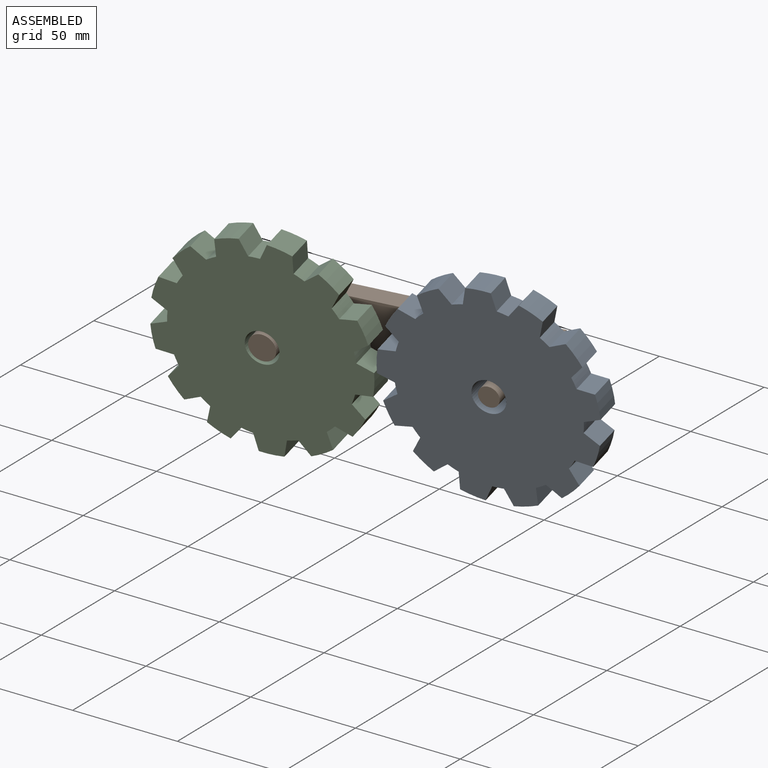
[diagram: assembled view]
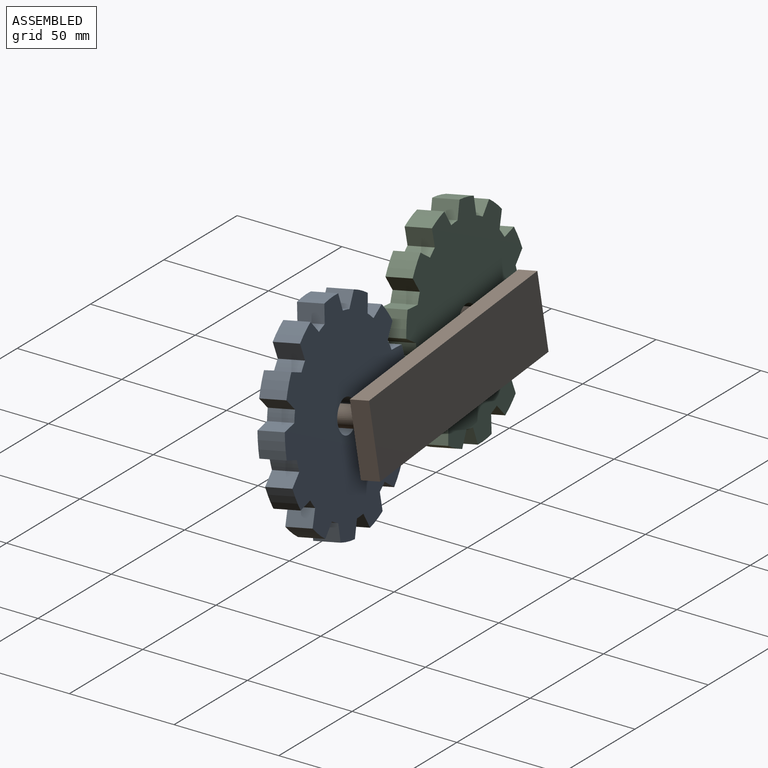
[diagram: assembled view, second angle]
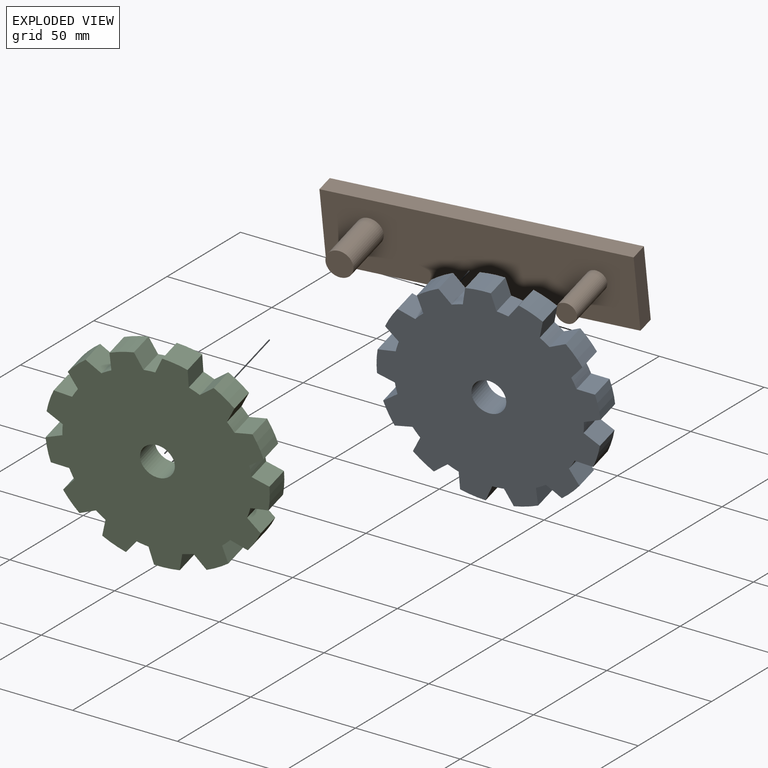
[diagram: exploded view]
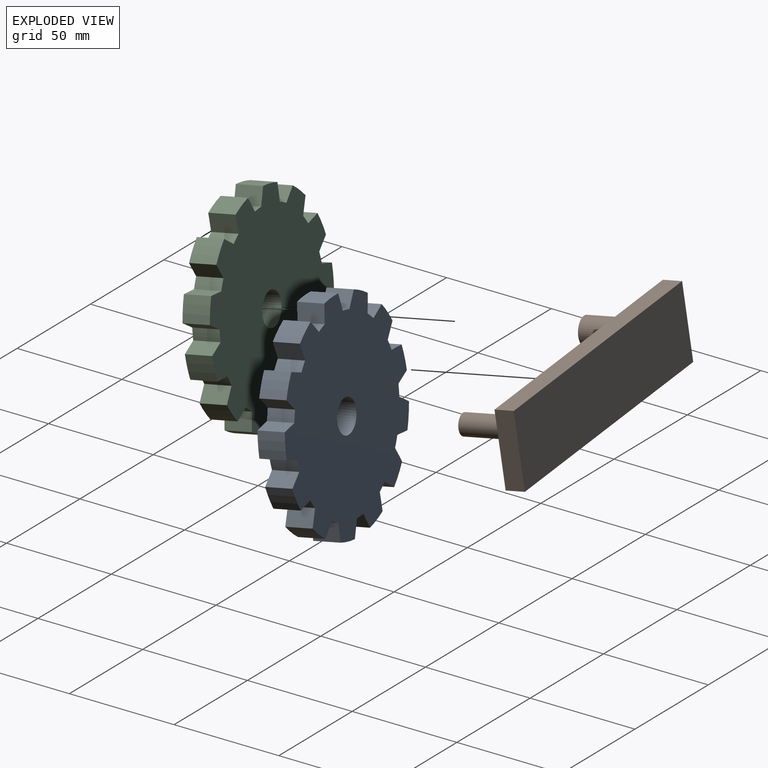
[diagram: exploded view, second angle]
ASSEMBLY  parts=3 mates=2
PART A: 55 faces, bbox 99.3x12.3x98.9 mm
  f0: plane 12.26x8.15mm, normal (-1,0,0.02), area 100mm2, adj f1,f52,f53,f54
  f1: cylinder r=49.64mm len=12.26mm, axis (0,1,0), area 140.1mm2, adj f0,f2,f53,f54
  f2: plane 12.26x7.3mm, normal (0.89,0,-0.45), area 100mm2, adj f1,f3,f53,f54
  f3: cylinder r=42.02mm len=12.26mm, axis (0,1,0), area 64.4mm2, adj f2,f4,f53,f54
  f4: plane 12.26x7.3mm, normal (-0.89,0,-0.45), area 100mm2, adj f3,f5,f53,f54
  f5: cylinder r=49.64mm len=12.26mm, axis (0,1,0), area 140.1mm2, adj f4,f6,f53,f54
  f6: plane 12.26x8.15mm, normal (1,0,0.02), area 100mm2, adj f5,f7,f53,f54
  f7: cylinder r=42.02mm len=12.26mm, axis (0,1,0), area 64.4mm2, adj f6,f8,f53,f54
  f8: plane 12.26x6.62mm, normal (-0.58,0,-0.81), area 100mm2, adj f7,f9,f53,f54
  f9: cylinder r=49.64mm len=12.26mm, axis (0,1,0), area 140.1mm2, adj f8,f10,f53,f54
  f10: plane 12.26x7.14mm, normal (0.88,0,0.48), area 100mm2, adj f9,f11,f53,f54
  f11: cylinder r=42.02mm len=12.26mm, axis (0,1,0), area 64.4mm2, adj f10,f12,f53,f54
  f12: plane 12.26x8.08mm, normal (-0.14,0,-0.99), area 100mm2, adj f11,f13,f53,f54
  f13: cylinder r=49.64mm len=12.26mm, axis (0,1,0), area 140.1mm2, adj f12,f14,f53,f54
  f14: plane 12.26x6.81mm, normal (0.55,0,0.83), area 100mm2, adj f13,f15,f53,f54
  f15: cylinder r=42.02mm len=12.26mm, axis (0,1,0), area 64.4mm2, adj f14,f16,f53,f54
  f16: plane 12.26x7.68mm, normal (0.34,0,-0.94), area 100mm2, adj f15,f17,f53,f54
  f17: cylinder r=49.64mm len=12.26mm, axis (0,1,0), area 140.1mm2, adj f16,f18,f53,f54
  f18: plane 12.26x8.12mm, normal (0.1,0,0.99), area 100mm2, adj f17,f19,f53,f54
  f19: cylinder r=42.02mm len=12.26mm, axis (0,1,0), area 64.4mm2, adj f18,f20,f53,f54
  f20: plane 12.26x5.99mm, normal (0.73,0,-0.68), area 100mm2, adj f19,f21,f53,f54
  f21: cylinder r=49.64mm len=12.26mm, axis (0,1,0), area 140.1mm2, adj f20,f22,f53,f54
  f22: plane 12.26x7.57mm, normal (-0.37,0,0.93), area 100mm2, adj f21,f23,f53,f54
  f23: cylinder r=42.02mm len=12.26mm, axis (0,1,0), area 64.4mm2, adj f22,f24,f53,f54
  f24: plane 12.26x7.88mm, normal (0.97,0,-0.26), area 100mm2, adj f23,f25,f53,f54
  f25: cylinder r=49.64mm len=12.26mm, axis (0,1,0), area 140.1mm2, adj f24,f26,f53,f54
  f26: plane 12.26x6.22mm, normal (-0.76,0,0.65), area 100mm2, adj f25,f27,f53,f54
  f27: cylinder r=42.02mm len=12.26mm, axis (0,1,0), area 64.4mm2, adj f26,f28,f53,f54
  f28: plane 12.26x7.96mm, normal (0.98,0,0.22), area 100mm2, adj f27,f29,f53,f54
  f29: cylinder r=49.64mm len=12.26mm, axis (0,1,0), area 140.1mm2, adj f28,f30,f53,f54
  f30: plane 12.26x7.96mm, normal (-0.98,0,0.22), area 100mm2, adj f29,f31,f53,f54
  f31: cylinder r=42.02mm len=12.26mm, axis (0,1,0), area 64.4mm2, adj f30,f32,f53,f54
  f32: plane 12.26x6.22mm, normal (0.76,0,0.65), area 100mm2, adj f31,f33,f53,f54
  f33: cylinder r=49.64mm len=12.26mm, axis (0,1,0), area 140.1mm2, adj f32,f34,f53,f54
  f34: plane 12.26x7.88mm, normal (-0.97,0,-0.26), area 100mm2, adj f33,f35,f53,f54
  f35: cylinder r=42.02mm len=12.26mm, axis (0,1,0), area 64.4mm2, adj f34,f36,f53,f54
  f36: plane 12.26x7.57mm, normal (0.37,0,0.93), area 100mm2, adj f35,f37,f53,f54
  f37: cylinder r=49.64mm len=12.26mm, axis (0,1,0), area 140.1mm2, adj f36,f38,f53,f54
  f38: plane 12.26x5.99mm, normal (-0.73,0,-0.68), area 100mm2, adj f37,f39,f53,f54
  f39: cylinder r=42.02mm len=12.26mm, axis (0,1,0), area 64.4mm2, adj f38,f40,f53,f54
  f40: plane 12.26x8.12mm, normal (-0.1,0,0.99), area 100mm2, adj f39,f41,f53,f54
  f41: cylinder r=49.64mm len=12.26mm, axis (0,1,0), area 140.1mm2, adj f40,f42,f53,f54
  f42: plane 12.26x7.68mm, normal (-0.34,0,-0.94), area 100mm2, adj f41,f43,f53,f54
  f43: cylinder r=42.02mm len=12.26mm, axis (0,1,0), area 64.4mm2, adj f42,f44,f53,f54
  f44: plane 12.26x6.81mm, normal (-0.55,0,0.83), area 100mm2, adj f43,f45,f53,f54
  f45: cylinder r=49.64mm len=12.26mm, axis (0,1,0), area 140.1mm2, adj f44,f46,f53,f54
  f46: plane 12.26x8.08mm, normal (0.14,0,-0.99), area 100mm2, adj f45,f47,f53,f54
  f47: cylinder r=42.02mm len=12.26mm, axis (0,1,0), area 64.4mm2, adj f46,f48,f53,f54
  f48: plane 12.26x7.14mm, normal (-0.88,0,0.48), area 100mm2, adj f47,f49,f53,f54
  f49: cylinder r=49.64mm len=12.26mm, axis (0,1,0), area 140.1mm2, adj f48,f50,f53,f54
  f50: plane 12.26x6.62mm, normal (0.58,0,-0.81), area 100mm2, adj f49,f52,f53,f54
  f51: cylinder r=7.69mm len=15.39mm, axis (0,1,0), area 592.6mm2, adj f53,f54
  f52: cylinder r=42.02mm len=12.26mm, axis (0,1,0), area 64.4mm2, adj f0,f50,f53,f54
  f53: plane 99.27x98.88mm, normal (0,-1,0), area 6671.7mm2, adj f0,f1,f2,f3,f4,f5,f6,f7
  f54: plane 99.27x98.88mm, normal (0,1,0), area 6671.7mm2, adj f0,f1,f2,f3,f4,f5,f6,f7
PART B: 10 faces, bbox 139.4x34x34 mm
  f0: plane 139.41x8.63mm, normal (0,0,1), area 1202.6mm2, adj f1,f3,f4,f5
  f1: plane 34.04x8.63mm, normal (-1,0,0), area 293.6mm2, adj f0,f2,f4,f5
  f2: plane 139.41x8.63mm, normal (0,0,-1), area 1202.6mm2, adj f1,f3,f4,f5
  f3: plane 34.04x8.63mm, normal (1,0,0), area 293.6mm2, adj f0,f2,f4,f5
  f4: plane 139.41x34.04mm, normal (0,-1,0), area 4552mm2, adj f0,f1,f2,f3,f6,f8
  f5: plane 139.41x34.04mm, normal (0,1,0), area 4745.8mm2, adj f0,f1,f2,f3
  f6: cylinder r=6.21mm len=25.4mm, axis (0,1,0), area 991.8mm2, adj f4,f7
  f7: plane 12.43x12.43mm, normal (0,-1,0), area 121.3mm2, adj f6
  f8: cylinder r=4.8mm len=25.4mm, axis (0,1,0), area 766.7mm2, adj f4,f9
  f9: plane 9.61x9.61mm, normal (0,-1,0), area 72.5mm2, adj f8
PART C: same geometry as A
PLACE A rot(axis=(0.79,-0.05,0.62),11deg) t=(147.58,-24.21,0.35)mm
PLACE B rot(axis=(0.78,0,0.62),11deg) t=(69.17,-11.91,2.93)mm fixed
PLACE C rot(axis=(0.06,-1,-0.08),179.8deg) t=(47.72,-36.15,-0.56)mm
MATE revolute C.f51 <-> B.f6  axis (-0.12,0.98,0.15) through (49.17,-48.18,-2.39)mm
MATE revolute A.f51 <-> B.f8  axis (0.12,-0.98,-0.15) through (149.04,-36.24,-1.49)mm
